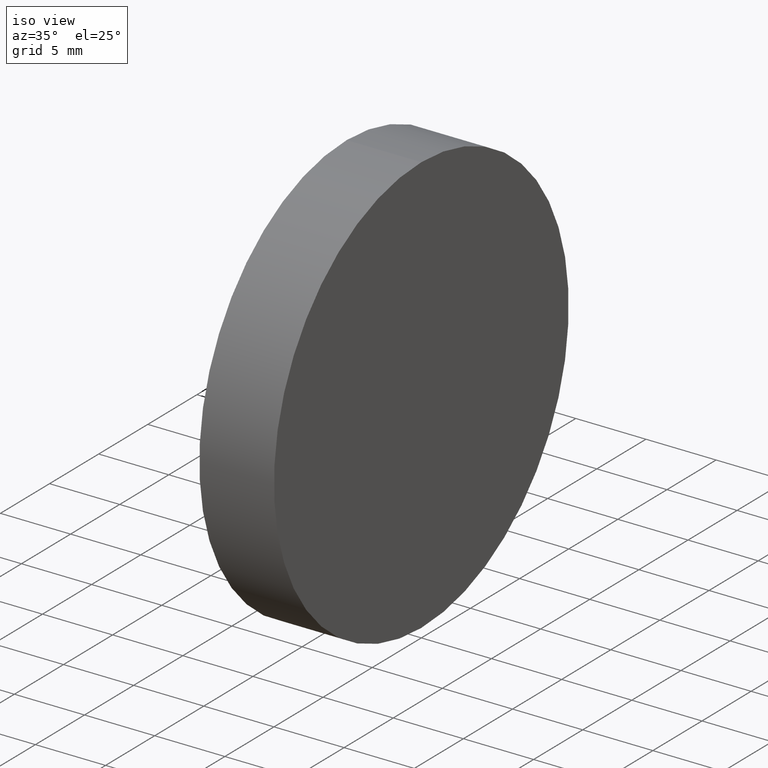
[diagram: clean part render]
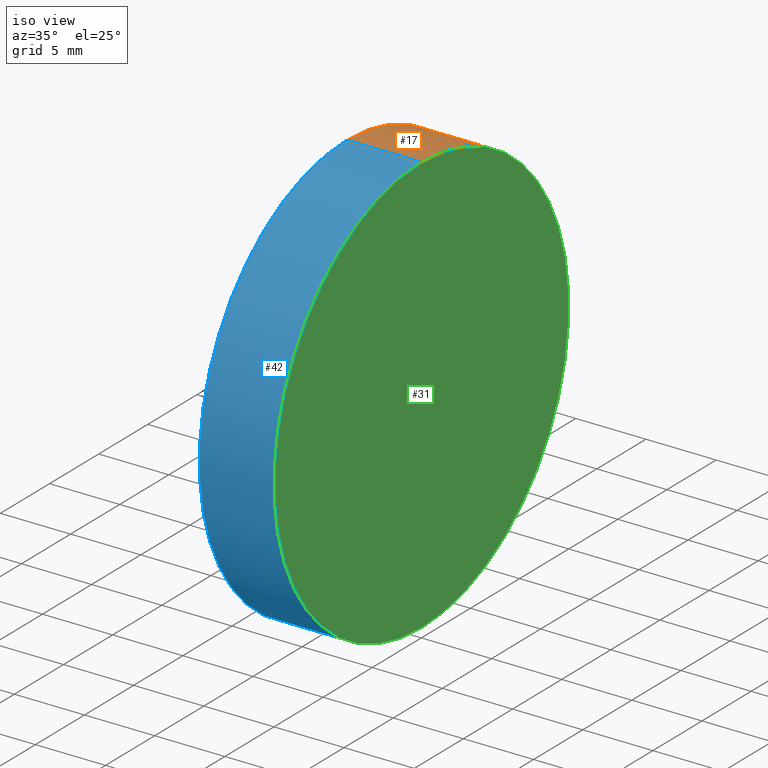
[diagram: same view with three faces highlighted in distinct colors, each labeled with its STEP entity id]
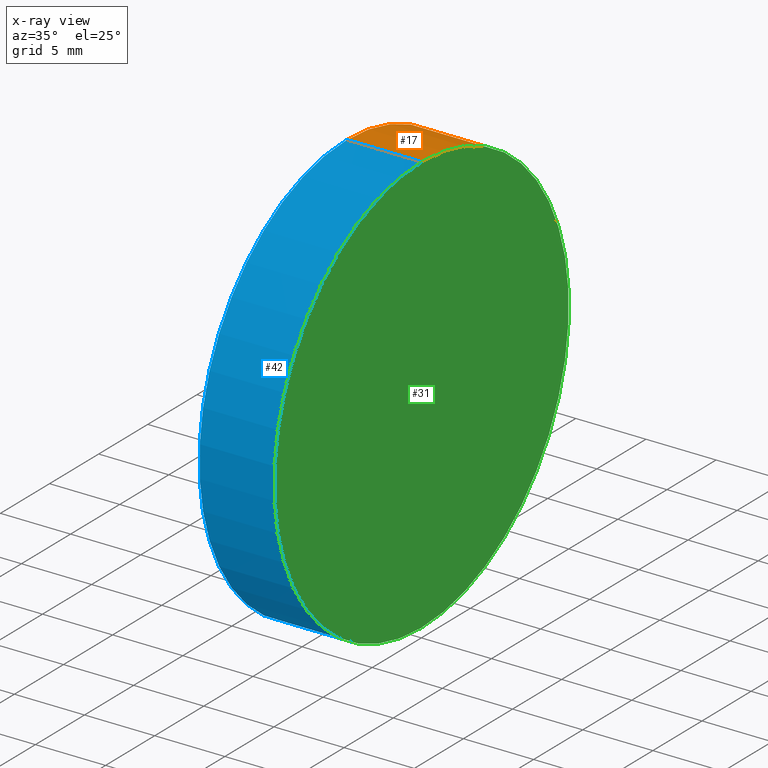
[diagram: x-ray of the same camera — body ghosted, the three highlighted faces saturated]
A machine part, iso view with three faces highlighted in distinct colors.
The next image is the same camera in x-ray (body ghosted, the three faces saturated) — at least one of them is partly hidden behind the body in this view.
Their STEP definitions:

[orange] entity #17 — the highlighted cylindrical surface (partial cylindrical patch) has radius 15 mm, axis along (1, -0, -0).
#9 = AXIS2_PLACEMENT_3D ( 'NONE', #102, #18, #48 ) ;
#15 = DIRECTION ( 'NONE',  ( 0.000000000000000000, 0.000000000000000000, -1.000000000000000000 ) ) ;
#17 = ADVANCED_FACE ( 'NONE', ( #185 ), #33, .T. ) ;
#18 = DIRECTION ( 'NONE',  ( 1.000000000000000000, -0.000000000000000000, -0.000000000000000000 ) ) ;
#19 = ORIENTED_EDGE ( 'NONE', *, *, #131, .F. ) ;
#24 = CARTESIAN_POINT ( 'NONE',  ( -5.320000000000001172, 0.000000000000000000, 0.000000000000000000 ) ) ;
#33 = CYLINDRICAL_SURFACE ( 'NONE', #176, 15.00000000000000000 ) ;
#34 = DIRECTION ( 'NONE',  ( 1.000000000000000000, -0.000000000000000000, -0.000000000000000000 ) ) ;
#46 = CARTESIAN_POINT ( 'NONE',  ( 0.000000000000000000, 0.000000000000000000, -15.00000000000000000 ) ) ;
#47 = DIRECTION ( 'NONE',  ( 1.000000000000000000, -0.000000000000000000, -0.000000000000000000 ) ) ;
#48 = DIRECTION ( 'NONE',  ( 0.000000000000000000, 0.000000000000000000, -1.000000000000000000 ) ) ;
#50 = CARTESIAN_POINT ( 'NONE',  ( -8.752393460409691345E-16, 1.836970198721029589E-15, 15.00000000000000000 ) ) ;
#59 = ORIENTED_EDGE ( 'NONE', *, *, #169, .T. ) ;
#60 = EDGE_LOOP ( 'NONE', ( #59, #112, #19, #175 ) ) ;
#64 = CARTESIAN_POINT ( 'NONE',  ( -8.752393460409691345E-16, 0.000000000000000000, -15.00000000000000000 ) ) ;
#73 = CIRCLE ( 'NONE', #9, 15.00000000000000000 ) ;
#75 = LINE ( 'NONE', #46, #182 ) ;
#78 = EDGE_CURVE ( 'NONE', #136, #166, #133, .T. ) ;
#86 = VERTEX_POINT ( 'NONE', #164 ) ;
#87 = VERTEX_POINT ( 'NONE', #64 ) ;
#94 = DIRECTION ( 'NONE',  ( 0.000000000000000000, 0.000000000000000000, -1.000000000000000000 ) ) ;
#97 = EDGE_CURVE ( 'NONE', #86, #87, #75, .T. ) ;
#102 = CARTESIAN_POINT ( 'NONE',  ( -8.752393460409691345E-16, 0.000000000000000000, 0.000000000000000000 ) ) ;
#112 = ORIENTED_EDGE ( 'NONE', *, *, #78, .T. ) ;
#131 = EDGE_CURVE ( 'NONE', #87, #166, #73, .T. ) ;
#133 = LINE ( 'NONE', #165, #155 ) ;
#136 = VERTEX_POINT ( 'NONE', #168 ) ;
#145 = CIRCLE ( 'NONE', #167, 15.00000000000000000 ) ;
#155 = VECTOR ( 'NONE', #47, 1000.000000000000000 ) ;
#164 = CARTESIAN_POINT ( 'NONE',  ( -5.320000000000000284, 0.000000000000000000, -14.99999999999998934 ) ) ;
#165 = CARTESIAN_POINT ( 'NONE',  ( 0.000000000000000000, 1.836970198721029589E-15, 15.00000000000000000 ) ) ;
#166 = VERTEX_POINT ( 'NONE', #50 ) ;
#167 = AXIS2_PLACEMENT_3D ( 'NONE', #24, #173, #94 ) ;
#168 = CARTESIAN_POINT ( 'NONE',  ( -5.320000000000000284, 1.836970198721028406E-15, 14.99999999999998934 ) ) ;
#169 = EDGE_CURVE ( 'NONE', #86, #136, #145, .T. ) ;
#173 = DIRECTION ( 'NONE',  ( 1.000000000000000000, -0.000000000000000000, -0.000000000000000000 ) ) ;
#175 = ORIENTED_EDGE ( 'NONE', *, *, #97, .F. ) ;
#176 = AXIS2_PLACEMENT_3D ( 'NONE', #199, #34, #15 ) ;
#182 = VECTOR ( 'NONE', #200, 1000.000000000000000 ) ;
#185 = FACE_OUTER_BOUND ( 'NONE', #60, .T. ) ;
#199 = CARTESIAN_POINT ( 'NONE',  ( 0.000000000000000000, 0.000000000000000000, 0.000000000000000000 ) ) ;
#200 = DIRECTION ( 'NONE',  ( 1.000000000000000000, -0.000000000000000000, -0.000000000000000000 ) ) ;

[blue] entity #42 — the highlighted cylindrical surface (partial cylindrical patch) has radius 15 mm, axis along (1, -0, -0).
#2 = DIRECTION ( 'NONE',  ( 0.000000000000000000, 0.000000000000000000, -1.000000000000000000 ) ) ;
#3 = CIRCLE ( 'NONE', #113, 15.00000000000000000 ) ;
#7 = EDGE_CURVE ( 'NONE', #136, #86, #122, .T. ) ;
#21 = CARTESIAN_POINT ( 'NONE',  ( 0.000000000000000000, 0.000000000000000000, 0.000000000000000000 ) ) ;
#23 = DIRECTION ( 'NONE',  ( 1.000000000000000000, -0.000000000000000000, -0.000000000000000000 ) ) ;
#32 = AXIS2_PLACEMENT_3D ( 'NONE', #62, #186, #181 ) ;
#37 = ORIENTED_EDGE ( 'NONE', *, *, #78, .F. ) ;
#42 = ADVANCED_FACE ( 'NONE', ( #183 ), #43, .T. ) ;
#43 = CYLINDRICAL_SURFACE ( 'NONE', #70, 15.00000000000000000 ) ;
#46 = CARTESIAN_POINT ( 'NONE',  ( 0.000000000000000000, 0.000000000000000000, -15.00000000000000000 ) ) ;
#47 = DIRECTION ( 'NONE',  ( 1.000000000000000000, -0.000000000000000000, -0.000000000000000000 ) ) ;
#50 = CARTESIAN_POINT ( 'NONE',  ( -8.752393460409691345E-16, 1.836970198721029589E-15, 15.00000000000000000 ) ) ;
#54 = DIRECTION ( 'NONE',  ( 0.000000000000000000, 0.000000000000000000, -1.000000000000000000 ) ) ;
#62 = CARTESIAN_POINT ( 'NONE',  ( -5.320000000000001172, 0.000000000000000000, 0.000000000000000000 ) ) ;
#64 = CARTESIAN_POINT ( 'NONE',  ( -8.752393460409691345E-16, 0.000000000000000000, -15.00000000000000000 ) ) ;
#70 = AXIS2_PLACEMENT_3D ( 'NONE', #21, #152, #2 ) ;
#74 = ORIENTED_EDGE ( 'NONE', *, *, #7, .T. ) ;
#75 = LINE ( 'NONE', #46, #182 ) ;
#78 = EDGE_CURVE ( 'NONE', #136, #166, #133, .T. ) ;
#86 = VERTEX_POINT ( 'NONE', #164 ) ;
#87 = VERTEX_POINT ( 'NONE', #64 ) ;
#88 = ORIENTED_EDGE ( 'NONE', *, *, #140, .F. ) ;
#89 = CARTESIAN_POINT ( 'NONE',  ( -8.752393460409691345E-16, 0.000000000000000000, 0.000000000000000000 ) ) ;
#97 = EDGE_CURVE ( 'NONE', #86, #87, #75, .T. ) ;
#113 = AXIS2_PLACEMENT_3D ( 'NONE', #89, #23, #54 ) ;
#120 = ORIENTED_EDGE ( 'NONE', *, *, #97, .T. ) ;
#122 = CIRCLE ( 'NONE', #32, 15.00000000000000000 ) ;
#133 = LINE ( 'NONE', #165, #155 ) ;
#136 = VERTEX_POINT ( 'NONE', #168 ) ;
#140 = EDGE_CURVE ( 'NONE', #166, #87, #3, .T. ) ;
#152 = DIRECTION ( 'NONE',  ( 1.000000000000000000, -0.000000000000000000, -0.000000000000000000 ) ) ;
#155 = VECTOR ( 'NONE', #47, 1000.000000000000000 ) ;
#164 = CARTESIAN_POINT ( 'NONE',  ( -5.320000000000000284, 0.000000000000000000, -14.99999999999998934 ) ) ;
#165 = CARTESIAN_POINT ( 'NONE',  ( 0.000000000000000000, 1.836970198721029589E-15, 15.00000000000000000 ) ) ;
#166 = VERTEX_POINT ( 'NONE', #50 ) ;
#168 = CARTESIAN_POINT ( 'NONE',  ( -5.320000000000000284, 1.836970198721028406E-15, 14.99999999999998934 ) ) ;
#181 = DIRECTION ( 'NONE',  ( 0.000000000000000000, 0.000000000000000000, -1.000000000000000000 ) ) ;
#182 = VECTOR ( 'NONE', #200, 1000.000000000000000 ) ;
#183 = FACE_OUTER_BOUND ( 'NONE', #198, .T. ) ;
#186 = DIRECTION ( 'NONE',  ( 1.000000000000000000, -0.000000000000000000, -0.000000000000000000 ) ) ;
#198 = EDGE_LOOP ( 'NONE', ( #37, #74, #120, #88 ) ) ;
#200 = DIRECTION ( 'NONE',  ( 1.000000000000000000, -0.000000000000000000, -0.000000000000000000 ) ) ;

[green] entity #31 — the highlighted planar face has unit normal (1, 0, -0).
#3 = CIRCLE ( 'NONE', #113, 15.00000000000000000 ) ;
#9 = AXIS2_PLACEMENT_3D ( 'NONE', #102, #18, #48 ) ;
#18 = DIRECTION ( 'NONE',  ( 1.000000000000000000, -0.000000000000000000, -0.000000000000000000 ) ) ;
#23 = DIRECTION ( 'NONE',  ( 1.000000000000000000, -0.000000000000000000, -0.000000000000000000 ) ) ;
#29 = EDGE_LOOP ( 'NONE', ( #134, #118 ) ) ;
#31 = ADVANCED_FACE ( 'NONE', ( #63 ), #153, .T. ) ;
#35 = CARTESIAN_POINT ( 'NONE',  ( -4.376196730204845672E-16, 15.00000000000000000, 0.000000000000000000 ) ) ;
#48 = DIRECTION ( 'NONE',  ( 0.000000000000000000, 0.000000000000000000, -1.000000000000000000 ) ) ;
#50 = CARTESIAN_POINT ( 'NONE',  ( -8.752393460409691345E-16, 1.836970198721029589E-15, 15.00000000000000000 ) ) ;
#54 = DIRECTION ( 'NONE',  ( 0.000000000000000000, 0.000000000000000000, -1.000000000000000000 ) ) ;
#63 = FACE_OUTER_BOUND ( 'NONE', #29, .T. ) ;
#64 = CARTESIAN_POINT ( 'NONE',  ( -8.752393460409691345E-16, 0.000000000000000000, -15.00000000000000000 ) ) ;
#73 = CIRCLE ( 'NONE', #9, 15.00000000000000000 ) ;
#87 = VERTEX_POINT ( 'NONE', #64 ) ;
#89 = CARTESIAN_POINT ( 'NONE',  ( -8.752393460409691345E-16, 0.000000000000000000, 0.000000000000000000 ) ) ;
#102 = CARTESIAN_POINT ( 'NONE',  ( -8.752393460409691345E-16, 0.000000000000000000, 0.000000000000000000 ) ) ;
#103 = DIRECTION ( 'NONE',  ( -0.000000000000000000, 0.000000000000000000, -1.000000000000000000 ) ) ;
#113 = AXIS2_PLACEMENT_3D ( 'NONE', #89, #23, #54 ) ;
#117 = DIRECTION ( 'NONE',  ( 1.000000000000000000, 0.000000000000000000, -0.000000000000000000 ) ) ;
#118 = ORIENTED_EDGE ( 'NONE', *, *, #140, .T. ) ;
#131 = EDGE_CURVE ( 'NONE', #87, #166, #73, .T. ) ;
#134 = ORIENTED_EDGE ( 'NONE', *, *, #131, .T. ) ;
#140 = EDGE_CURVE ( 'NONE', #166, #87, #3, .T. ) ;
#153 = PLANE ( 'NONE',  #159 ) ;
#159 = AXIS2_PLACEMENT_3D ( 'NONE', #35, #117, #103 ) ;
#166 = VERTEX_POINT ( 'NONE', #50 ) ;